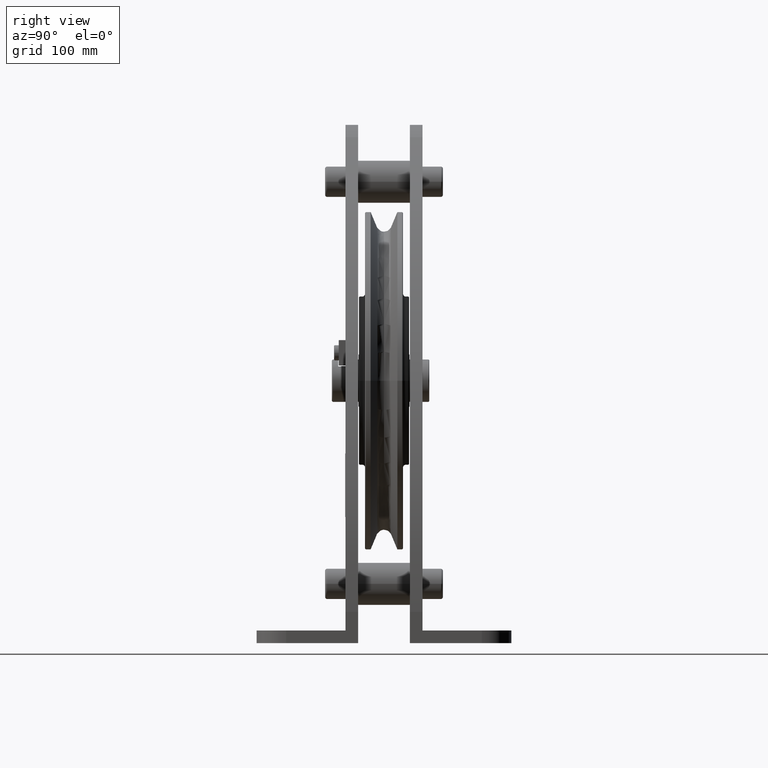
[diagram: clean part render]
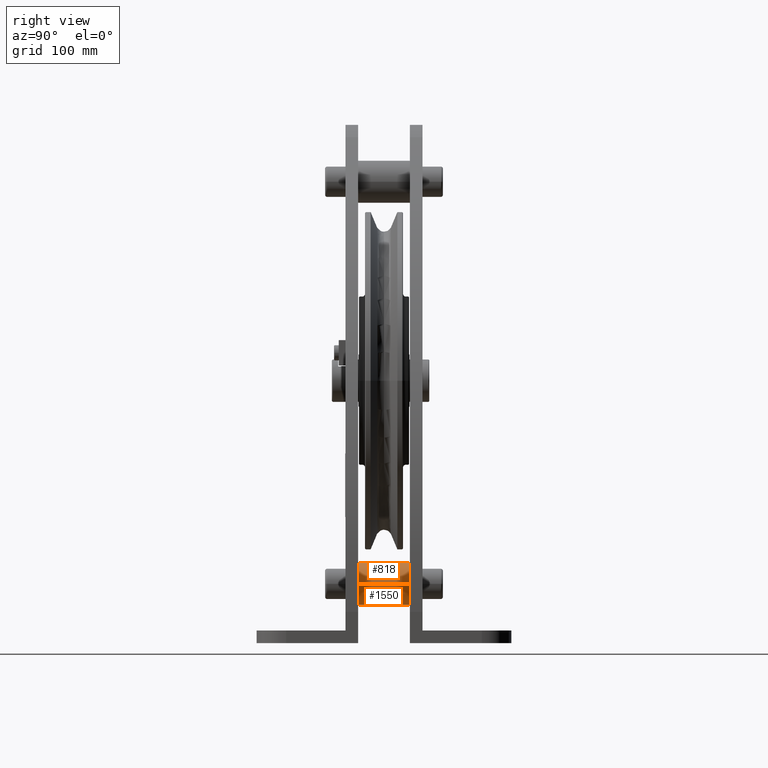
[diagram: same view with one multi-face feature highlighted, each face labeled with its STEP entity id]
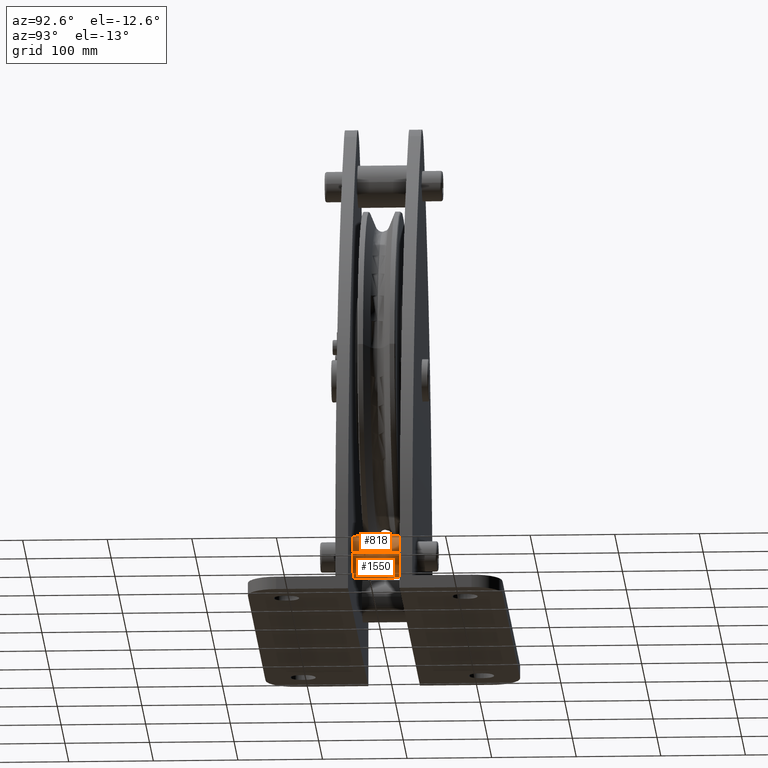
[diagram: same view with one multi-face feature highlighted, each face labeled with its STEP entity id]
A machine part, right view. The highlighted faces form ONE feature: a constant-radius fillet chain: 2 tangent blend faces with common blend radius 25 mm. The faces share edges in the B-rep.
A second angle (auxiliary view) of the same feature is appended — it is thin or edge-on in the first view.
Their STEP definitions:
[1] entity #1550 (Cylinder):
#1550=ADVANCED_FACE('',(#3350),#3351,.T.);
#3350=FACE_OUTER_BOUND('',#5382,.T.);
#3351=CYLINDRICAL_SURFACE('',#5383,25.0);
#5382=EDGE_LOOP('',(#10273,#10274,#10275,#10276));
#5383=AXIS2_PLACEMENT_3D('',#10277,#10278,#10279);
#10273=ORIENTED_EDGE('',*,*,#12543,.T.);
#10274=ORIENTED_EDGE('',*,*,#13855,.F.);
#10275=ORIENTED_EDGE('',*,*,#12545,.T.);
#10276=ORIENTED_EDGE('',*,*,#13774,.F.);
#10277=CARTESIAN_POINT('',(120.0,0.0,-240.0));
#10278=DIRECTION('',(0.0,-1.0,0.0));
#10279=DIRECTION('',(1.0,0.0,0.0));
#12543=EDGE_CURVE('',#15249,#15250,#15251,.T.);
#12545=EDGE_CURVE('',#15254,#15252,#15255,.T.);
#13774=EDGE_CURVE('',#15249,#15252,#17085,.T.);
#13855=EDGE_CURVE('',#15254,#15250,#17202,.T.);
#15249=VERTEX_POINT('',#22109);
#15250=VERTEX_POINT('',#22110);
#15251=LINE('',#22111,#22112);
#15252=VERTEX_POINT('',#22113);
#15254=VERTEX_POINT('',#22115);
#15255=LINE('',#22116,#22117);
#17085=CIRCLE('',#24606,25.0);
#17202=CIRCLE('',#24759,25.0);
#22109=CARTESIAN_POINT('',(145.0,30.5,-240.0));
#22110=CARTESIAN_POINT('',(145.0,-30.5,-240.0));
#22111=CARTESIAN_POINT('',(145.0,0.0,-240.0));
#22112=VECTOR('',#27475,1.0);
#22113=CARTESIAN_POINT('',(95.0,30.5,-240.0));
#22115=CARTESIAN_POINT('',(95.0,-30.5,-240.0));
#22116=CARTESIAN_POINT('',(95.0,0.0,-240.0));
#22117=VECTOR('',#27479,1.0);
#24606=AXIS2_PLACEMENT_3D('',#28868,#28869,#28870);
#24759=AXIS2_PLACEMENT_3D('',#28979,#28980,#28981);
#27475=DIRECTION('',(0.0,-1.0,0.0));
#27479=DIRECTION('',(-0.0,1.0,-0.0));
#28868=CARTESIAN_POINT('',(120.0,30.5,-240.0));
#28869=DIRECTION('',(-0.0,1.0,0.0));
#28870=DIRECTION('',(1.0,0.0,0.0));
#28979=CARTESIAN_POINT('',(120.0,-30.5,-240.0));
#28980=DIRECTION('',(0.0,-1.0,0.0));
#28981=DIRECTION('',(1.0,0.0,0.0));
[2] entity #818 (Cylinder):
#818=ADVANCED_FACE('',(#2200),#2201,.T.);
#2200=FACE_OUTER_BOUND('',#4232,.T.);
#2201=CYLINDRICAL_SURFACE('',#4233,25.0);
#4232=EDGE_LOOP('',(#6788,#6789,#6790,#6791));
#4233=AXIS2_PLACEMENT_3D('',#6792,#6793,#6794);
#6788=ORIENTED_EDGE('',*,*,#12543,.F.);
#6789=ORIENTED_EDGE('',*,*,#12544,.F.);
#6790=ORIENTED_EDGE('',*,*,#12545,.F.);
#6791=ORIENTED_EDGE('',*,*,#12546,.F.);
#6792=CARTESIAN_POINT('',(120.0,0.0,-240.0));
#6793=DIRECTION('',(0.0,-1.0,0.0));
#6794=DIRECTION('',(1.0,0.0,0.0));
#12543=EDGE_CURVE('',#15249,#15250,#15251,.T.);
#12544=EDGE_CURVE('',#15252,#15249,#15253,.T.);
#12545=EDGE_CURVE('',#15254,#15252,#15255,.T.);
#12546=EDGE_CURVE('',#15250,#15254,#15256,.T.);
#15249=VERTEX_POINT('',#22109);
#15250=VERTEX_POINT('',#22110);
#15251=LINE('',#22111,#22112);
#15252=VERTEX_POINT('',#22113);
#15253=CIRCLE('',#22114,25.0);
#15254=VERTEX_POINT('',#22115);
#15255=LINE('',#22116,#22117);
#15256=CIRCLE('',#22118,25.0);
#22109=CARTESIAN_POINT('',(145.0,30.5,-240.0));
#22110=CARTESIAN_POINT('',(145.0,-30.5,-240.0));
#22111=CARTESIAN_POINT('',(145.0,0.0,-240.0));
#22112=VECTOR('',#27475,1.0);
#22113=CARTESIAN_POINT('',(95.0,30.5,-240.0));
#22114=AXIS2_PLACEMENT_3D('',#27476,#27477,#27478);
#22115=CARTESIAN_POINT('',(95.0,-30.5,-240.0));
#22116=CARTESIAN_POINT('',(95.0,0.0,-240.0));
#22117=VECTOR('',#27479,1.0);
#22118=AXIS2_PLACEMENT_3D('',#27480,#27481,#27482);
#27475=DIRECTION('',(0.0,-1.0,0.0));
#27476=CARTESIAN_POINT('',(120.0,30.5,-240.0));
#27477=DIRECTION('',(-0.0,1.0,0.0));
#27478=DIRECTION('',(1.0,0.0,0.0));
#27479=DIRECTION('',(-0.0,1.0,-0.0));
#27480=CARTESIAN_POINT('',(120.0,-30.5,-240.0));
#27481=DIRECTION('',(0.0,-1.0,0.0));
#27482=DIRECTION('',(1.0,0.0,0.0));